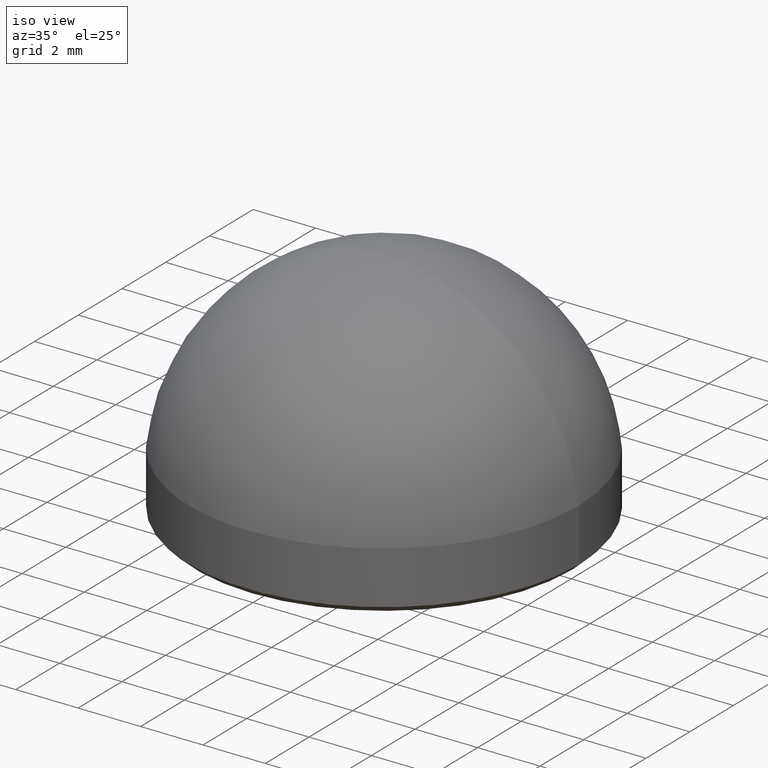
[diagram: clean part render]
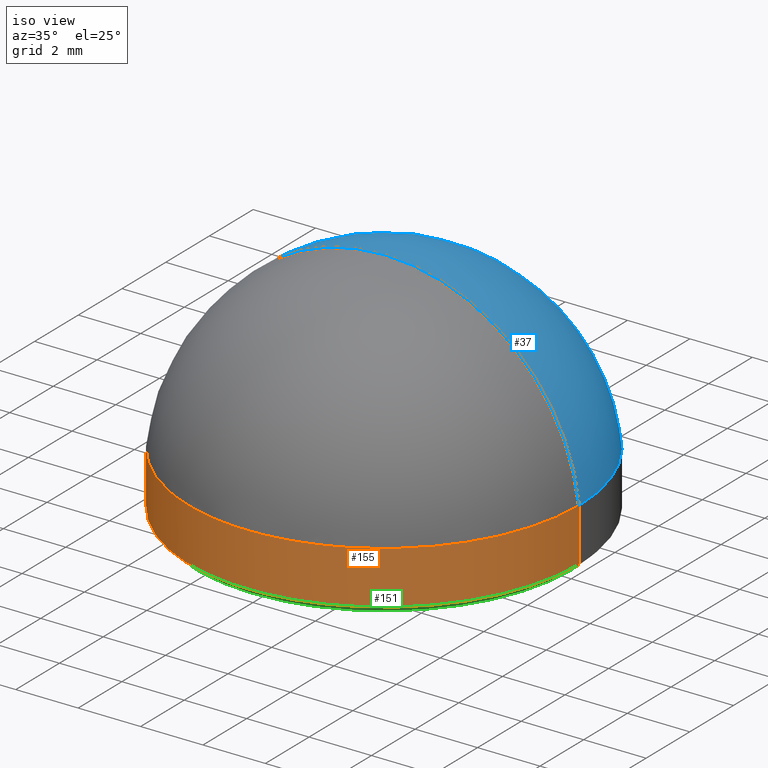
[diagram: same view with three faces highlighted in distinct colors, each labeled with its STEP entity id]
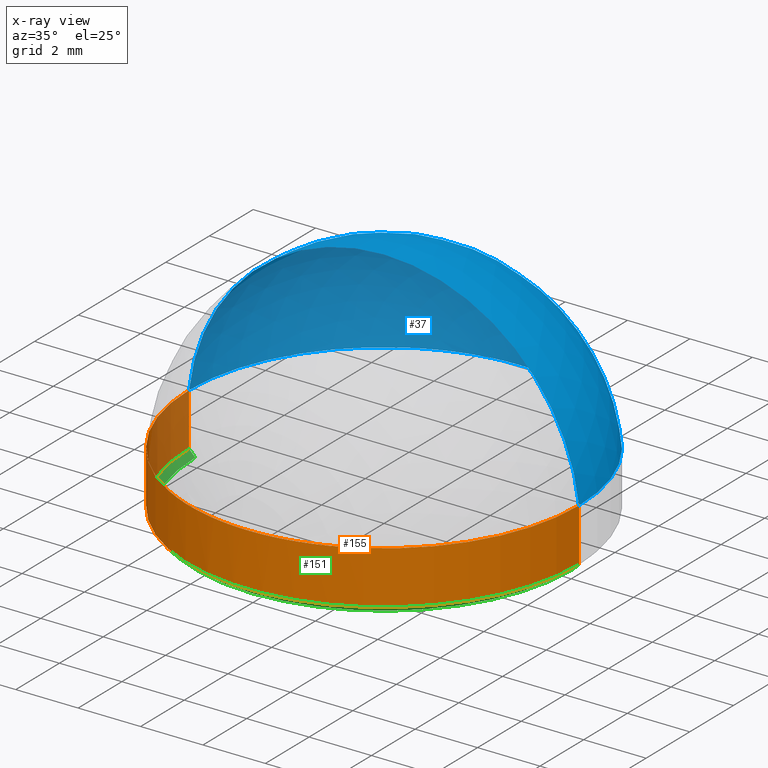
[diagram: x-ray of the same camera — body ghosted, the three highlighted faces saturated]
A machine part, iso view with three faces highlighted in distinct colors.
The next image is the same camera in x-ray (body ghosted, the three faces saturated) — at least one of them is partly hidden behind the body in this view.
Their STEP definitions:

[orange] entity #155 — the highlighted cylindrical surface (partial cylindrical patch) has radius 6.25 mm, axis along (-0, -0, -1).
#1 = VERTEX_POINT ( 'NONE', #51 ) ;
#2 = AXIS2_PLACEMENT_3D ( 'NONE', #143, #211, #59 ) ;
#11 = DIRECTION ( 'NONE',  ( -0.000000000000000000, -0.000000000000000000, -1.000000000000000000 ) ) ;
#12 = VERTEX_POINT ( 'NONE', #181 ) ;
#17 = ORIENTED_EDGE ( 'NONE', *, *, #117, .T. ) ;
#23 = CARTESIAN_POINT ( 'NONE',  ( -6.250000000000000000, 0.000000000000000000, 0.2000000000000083378 ) ) ;
#29 = ORIENTED_EDGE ( 'NONE', *, *, #214, .F. ) ;
#31 = LINE ( 'NONE', #60, #85 ) ;
#35 = EDGE_LOOP ( 'NONE', ( #29, #132, #76, #17 ) ) ;
#44 = AXIS2_PLACEMENT_3D ( 'NONE', #171, #157, #47 ) ;
#47 = DIRECTION ( 'NONE',  ( 1.000000000000000000, 0.000000000000000000, 0.000000000000000000 ) ) ;
#48 = AXIS2_PLACEMENT_3D ( 'NONE', #149, #81, #101 ) ;
#51 = CARTESIAN_POINT ( 'NONE',  ( 6.250000000000000000, 7.654042494670955634E-16, 0.2000000000000083378 ) ) ;
#55 = LINE ( 'NONE', #164, #152 ) ;
#56 = EDGE_CURVE ( 'NONE', #64, #200, #31, .T. ) ;
#59 = DIRECTION ( 'NONE',  ( -1.000000000000000000, 0.000000000000000000, 0.000000000000000000 ) ) ;
#60 = CARTESIAN_POINT ( 'NONE',  ( -6.250000000000000000, 0.000000000000000000, 1.899999999999999911 ) ) ;
#64 = VERTEX_POINT ( 'NONE', #93 ) ;
#73 = FACE_OUTER_BOUND ( 'NONE', #35, .T. ) ;
#74 = CYLINDRICAL_SURFACE ( 'NONE', #2, 6.250000000000000000 ) ;
#76 = ORIENTED_EDGE ( 'NONE', *, *, #56, .T. ) ;
#81 = DIRECTION ( 'NONE',  ( 0.000000000000000000, 0.000000000000000000, 1.000000000000000000 ) ) ;
#83 = DIRECTION ( 'NONE',  ( -0.000000000000000000, -0.000000000000000000, -1.000000000000000000 ) ) ;
#85 = VECTOR ( 'NONE', #11, 1000.000000000000000 ) ;
#88 = CIRCLE ( 'NONE', #48, 6.250000000000000000 ) ;
#93 = CARTESIAN_POINT ( 'NONE',  ( -6.250000000000000000, 0.000000000000000000, 1.899999999999999911 ) ) ;
#101 = DIRECTION ( 'NONE',  ( 1.000000000000000000, 0.000000000000000000, 0.000000000000000000 ) ) ;
#117 = EDGE_CURVE ( 'NONE', #200, #1, #216, .T. ) ;
#132 = ORIENTED_EDGE ( 'NONE', *, *, #193, .F. ) ;
#143 = CARTESIAN_POINT ( 'NONE',  ( 0.000000000000000000, 0.000000000000000000, 1.899999999999999911 ) ) ;
#149 = CARTESIAN_POINT ( 'NONE',  ( 0.000000000000000000, 0.000000000000000000, 1.899999999999999911 ) ) ;
#152 = VECTOR ( 'NONE', #83, 1000.000000000000000 ) ;
#155 = ADVANCED_FACE ( 'NONE', ( #73 ), #74, .T. ) ;
#157 = DIRECTION ( 'NONE',  ( -0.000000000000000000, -0.000000000000000000, 1.000000000000000000 ) ) ;
#164 = CARTESIAN_POINT ( 'NONE',  ( 6.250000000000000000, 7.654042494670955634E-16, 1.899999999999999911 ) ) ;
#171 = CARTESIAN_POINT ( 'NONE',  ( 0.000000000000000000, 0.000000000000000000, 0.2000000000000083378 ) ) ;
#181 = CARTESIAN_POINT ( 'NONE',  ( 6.250000000000000000, 7.654042494670955634E-16, 1.899999999999999911 ) ) ;
#193 = EDGE_CURVE ( 'NONE', #64, #12, #88, .T. ) ;
#200 = VERTEX_POINT ( 'NONE', #23 ) ;
#211 = DIRECTION ( 'NONE',  ( -0.000000000000000000, -0.000000000000000000, -1.000000000000000000 ) ) ;
#214 = EDGE_CURVE ( 'NONE', #12, #1, #55, .T. ) ;
#216 = CIRCLE ( 'NONE', #44, 6.250000000000000000 ) ;

[blue] entity #37 — the highlighted spherical surface has radius 6.2877 mm.
#6 = AXIS2_PLACEMENT_3D ( 'NONE', #45, #111, #176 ) ;
#12 = VERTEX_POINT ( 'NONE', #181 ) ;
#20 = AXIS2_PLACEMENT_3D ( 'NONE', #123, #187, #43 ) ;
#26 = DIRECTION ( 'NONE',  ( -1.224646799147353207E-16, -1.000000000000000000, -0.000000000000000000 ) ) ;
#27 = AXIS2_PLACEMENT_3D ( 'NONE', #105, #26, #89 ) ;
#37 = ADVANCED_FACE ( 'NONE', ( #160 ), #213, .T. ) ;
#43 = DIRECTION ( 'NONE',  ( 1.000000000000000000, 0.000000000000000000, 0.000000000000000000 ) ) ;
#45 = CARTESIAN_POINT ( 'NONE',  ( 0.000000000000000000, 0.000000000000000000, 1.212276785714286209 ) ) ;
#52 = EDGE_CURVE ( 'NONE', #64, #179, #96, .T. ) ;
#64 = VERTEX_POINT ( 'NONE', #93 ) ;
#80 = EDGE_LOOP ( 'NONE', ( #146, #128, #175 ) ) ;
#89 = DIRECTION ( 'NONE',  ( 1.000000000000000000, -1.224646799147353454E-16, 0.000000000000000000 ) ) ;
#93 = CARTESIAN_POINT ( 'NONE',  ( -6.250000000000000000, 0.000000000000000000, 1.899999999999999911 ) ) ;
#96 = CIRCLE ( 'NONE', #6, 6.287723214285714235 ) ;
#105 = CARTESIAN_POINT ( 'NONE',  ( 0.000000000000000000, 0.000000000000000000, 1.212276785714286209 ) ) ;
#111 = DIRECTION ( 'NONE',  ( 0.000000000000000000, 1.000000000000000000, 0.000000000000000000 ) ) ;
#119 = CIRCLE ( 'NONE', #27, 6.287723214285714235 ) ;
#123 = CARTESIAN_POINT ( 'NONE',  ( 0.000000000000000000, 0.000000000000000000, 1.899999999999999911 ) ) ;
#124 = CIRCLE ( 'NONE', #20, 6.250000000000000000 ) ;
#128 = ORIENTED_EDGE ( 'NONE', *, *, #168, .T. ) ;
#141 = EDGE_CURVE ( 'NONE', #12, #179, #119, .T. ) ;
#146 = ORIENTED_EDGE ( 'NONE', *, *, #141, .F. ) ;
#158 = DIRECTION ( 'NONE',  ( -0.000000000000000000, -1.000000000000000000, 0.000000000000000000 ) ) ;
#160 = FACE_OUTER_BOUND ( 'NONE', #80, .T. ) ;
#162 = DIRECTION ( 'NONE',  ( -1.000000000000000000, 0.000000000000000000, 0.000000000000000000 ) ) ;
#168 = EDGE_CURVE ( 'NONE', #12, #64, #124, .T. ) ;
#175 = ORIENTED_EDGE ( 'NONE', *, *, #52, .T. ) ;
#176 = DIRECTION ( 'NONE',  ( 0.000000000000000000, 0.000000000000000000, 1.000000000000000000 ) ) ;
#179 = VERTEX_POINT ( 'NONE', #212 ) ;
#181 = CARTESIAN_POINT ( 'NONE',  ( 6.250000000000000000, 7.654042494670955634E-16, 1.899999999999999911 ) ) ;
#185 = CARTESIAN_POINT ( 'NONE',  ( 0.000000000000000000, 0.000000000000000000, 1.212276785714286209 ) ) ;
#187 = DIRECTION ( 'NONE',  ( 0.000000000000000000, 0.000000000000000000, 1.000000000000000000 ) ) ;
#189 = AXIS2_PLACEMENT_3D ( 'NONE', #185, #158, #162 ) ;
#212 = CARTESIAN_POINT ( 'NONE',  ( -3.850120054149754005E-16, 0.000000000000000000, 7.500000000000000888 ) ) ;
#213 = SPHERICAL_SURFACE ( 'NONE', #189, 6.287723214285714235 ) ;

[green] entity #151 — the highlighted conical surface has half-angle 45 deg.
#1 = VERTEX_POINT ( 'NONE', #51 ) ;
#9 = DIRECTION ( 'NONE',  ( -0.000000000000000000, -0.000000000000000000, 1.000000000000000000 ) ) ;
#10 = DIRECTION ( 'NONE',  ( -0.000000000000000000, -0.000000000000000000, -1.000000000000000000 ) ) ;
#16 = AXIS2_PLACEMENT_3D ( 'NONE', #121, #10, #186 ) ;
#23 = CARTESIAN_POINT ( 'NONE',  ( -6.250000000000000000, 0.000000000000000000, 0.2000000000000083378 ) ) ;
#28 = CARTESIAN_POINT ( 'NONE',  ( 0.000000000000000000, 0.000000000000000000, 0.2000000000000083378 ) ) ;
#44 = AXIS2_PLACEMENT_3D ( 'NONE', #171, #157, #47 ) ;
#46 = EDGE_LOOP ( 'NONE', ( #91, #95, #150, #98 ) ) ;
#47 = DIRECTION ( 'NONE',  ( 1.000000000000000000, 0.000000000000000000, 0.000000000000000000 ) ) ;
#51 = CARTESIAN_POINT ( 'NONE',  ( 6.250000000000000000, 7.654042494670955634E-16, 0.2000000000000083378 ) ) ;
#54 = DIRECTION ( 'NONE',  ( -0.7071067811865490160, 8.659560562354953812E-17, 0.7071067811865460184 ) ) ;
#58 = CARTESIAN_POINT ( 'NONE',  ( -6.049999999999990941, 7.531577814756217134E-16, 0.000000000000000000 ) ) ;
#65 = VERTEX_POINT ( 'NONE', #58 ) ;
#72 = VECTOR ( 'NONE', #108, 1000.000000000000114 ) ;
#86 = EDGE_CURVE ( 'NONE', #180, #65, #106, .T. ) ;
#87 = FACE_OUTER_BOUND ( 'NONE', #46, .T. ) ;
#91 = ORIENTED_EDGE ( 'NONE', *, *, #184, .F. ) ;
#95 = ORIENTED_EDGE ( 'NONE', *, *, #86, .F. ) ;
#98 = ORIENTED_EDGE ( 'NONE', *, *, #117, .F. ) ;
#106 = CIRCLE ( 'NONE', #16, 6.049999999999990941 ) ;
#108 = DIRECTION ( 'NONE',  ( 0.7071067811865490160, 0.000000000000000000, 0.7071067811865460184 ) ) ;
#112 = EDGE_CURVE ( 'NONE', #180, #1, #126, .T. ) ;
#117 = EDGE_CURVE ( 'NONE', #200, #1, #216, .T. ) ;
#121 = CARTESIAN_POINT ( 'NONE',  ( 0.000000000000000000, 0.000000000000000000, 0.000000000000000000 ) ) ;
#126 = LINE ( 'NONE', #192, #72 ) ;
#136 = LINE ( 'NONE', #206, #203 ) ;
#150 = ORIENTED_EDGE ( 'NONE', *, *, #112, .T. ) ;
#151 = ADVANCED_FACE ( 'NONE', ( #87 ), #177, .T. ) ;
#154 = DIRECTION ( 'NONE',  ( 1.000000000000000000, 0.000000000000000000, 0.000000000000000000 ) ) ;
#157 = DIRECTION ( 'NONE',  ( -0.000000000000000000, -0.000000000000000000, 1.000000000000000000 ) ) ;
#171 = CARTESIAN_POINT ( 'NONE',  ( 0.000000000000000000, 0.000000000000000000, 0.2000000000000083378 ) ) ;
#177 = CONICAL_SURFACE ( 'NONE', #209, 6.250000000000000000, 0.7853981633974504994 ) ;
#180 = VERTEX_POINT ( 'NONE', #195 ) ;
#184 = EDGE_CURVE ( 'NONE', #65, #200, #136, .T. ) ;
#186 = DIRECTION ( 'NONE',  ( 1.000000000000000000, 0.000000000000000000, 0.000000000000000000 ) ) ;
#192 = CARTESIAN_POINT ( 'NONE',  ( 6.250000000000000000, 0.000000000000000000, 0.2000000000000083378 ) ) ;
#195 = CARTESIAN_POINT ( 'NONE',  ( 6.049999999999990941, 0.000000000000000000, 0.000000000000000000 ) ) ;
#200 = VERTEX_POINT ( 'NONE', #23 ) ;
#203 = VECTOR ( 'NONE', #54, 1000.000000000000114 ) ;
#206 = CARTESIAN_POINT ( 'NONE',  ( -6.250000000000000000, 7.654042494670957606E-16, 0.2000000000000083378 ) ) ;
#209 = AXIS2_PLACEMENT_3D ( 'NONE', #28, #9, #154 ) ;
#216 = CIRCLE ( 'NONE', #44, 6.250000000000000000 ) ;